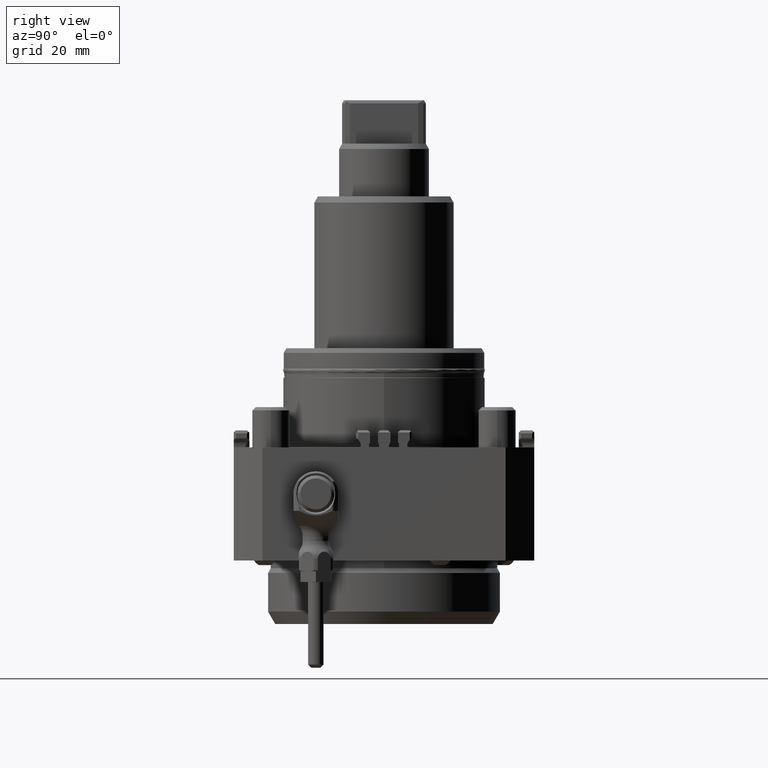
[diagram: clean part render]
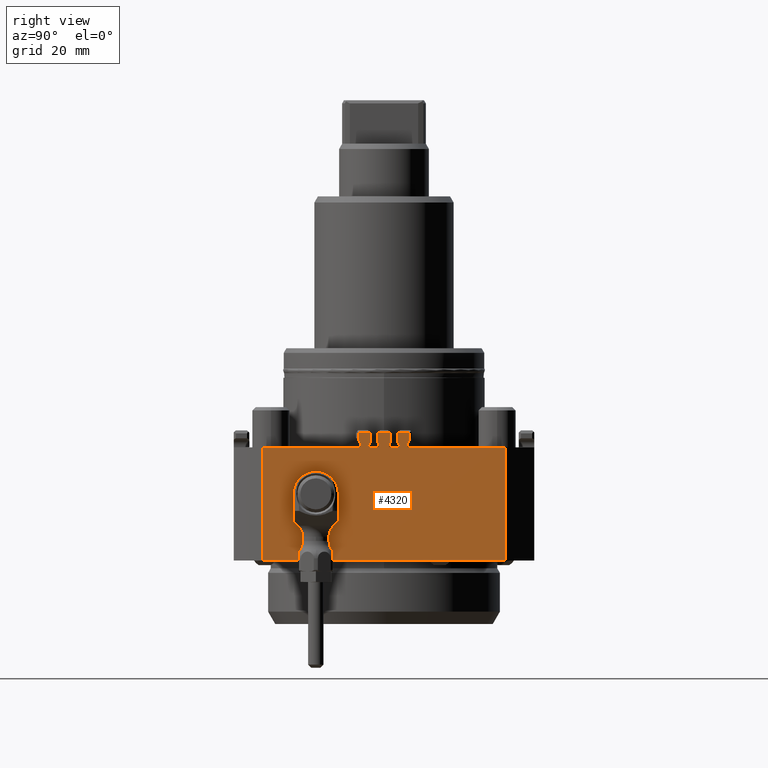
[diagram: same view with one face highlighted and labeled with its STEP entity id]
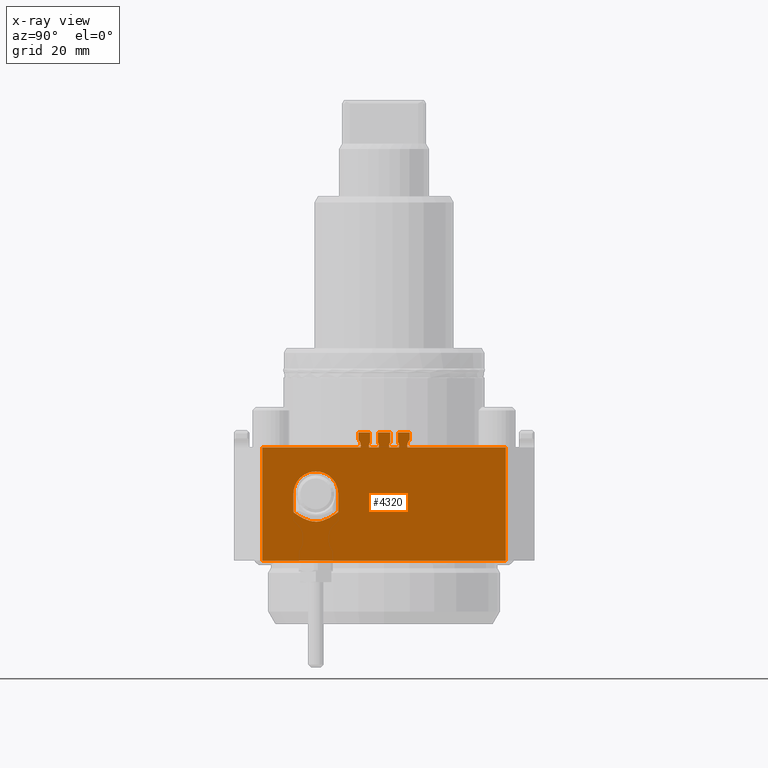
[diagram: x-ray of the same camera — body ghosted, the highlighted face saturated]
A machine part, right view. The second image highlights one B-rep face of the part: STEP entity #4320.
The next image is the same camera in x-ray: the body ghosted, the highlighted face saturated — about 0% of this face is hidden behind the body in this view.
In plain terms, the highlighted planar face has unit normal (1, -0, -0).
Its self-contained STEP definition (entity closure, byte-faithful):
#650=CARTESIAN_POINT('',(48.,4.822418519,-0.));
#651=VERTEX_POINT('',#650);
#658=CARTESIAN_POINT('',(48.,4.5,1.577032961));
#659=VERTEX_POINT('',#658);
#660=CARTESIAN_POINT('',(48.,3.25,0.5));
#661=DIRECTION('',(-1.,0.,-0.));
#662=DIRECTION('',(0.,0.,1.));
#663=AXIS2_PLACEMENT_3D('',#660,#661,#662);
#664=CIRCLE('',#663,1.65);
#665=EDGE_CURVE('',#659,#651,#664,.T.);
#690=CARTESIAN_POINT('',(48.,1.677581481,-0.));
#691=VERTEX_POINT('',#690);
#709=CARTESIAN_POINT('',(48.,2.,1.577032961));
#710=VERTEX_POINT('',#709);
#717=CARTESIAN_POINT('',(48.,3.25,0.5));
#718=DIRECTION('',(-1.,0.,-0.));
#719=DIRECTION('',(0.,0.,1.));
#720=AXIS2_PLACEMENT_3D('',#717,#718,#719);
#721=CIRCLE('',#720,1.65);
#722=EDGE_CURVE('',#691,#710,#721,.T.);
#976=CARTESIAN_POINT('',(48.,7.545836543,-0.));
#977=VERTEX_POINT('',#976);
#1012=CARTESIAN_POINT('',(48.,8.305,2.444087189));
#1013=VERTEX_POINT('',#1012);
#1021=CARTESIAN_POINT('',(48.,10.25,0.5));
#1022=DIRECTION('',(-1.,0.,-0.));
#1023=DIRECTION('',(0.,0.,1.));
#1024=AXIS2_PLACEMENT_3D('',#1021,#1022,#1023);
#1025=CIRCLE('',#1024,2.75);
#1026=EDGE_CURVE('',#977,#1013,#1025,.T.);
#1036=CARTESIAN_POINT('',(48.,-4.822418519,0.));
#1037=VERTEX_POINT('',#1036);
#1055=CARTESIAN_POINT('',(48.,-4.5,1.577032961));
#1056=VERTEX_POINT('',#1055);
#1063=CARTESIAN_POINT('',(48.,-3.25,0.5));
#1064=DIRECTION('',(-1.,0.,-0.));
#1065=DIRECTION('',(0.,0.,1.));
#1066=AXIS2_PLACEMENT_3D('',#1063,#1064,#1065);
#1067=CIRCLE('',#1066,1.65);
#1068=EDGE_CURVE('',#1037,#1056,#1067,.T.);
#2118=CARTESIAN_POINT('',(48.,-27.126524164,-9.873475836));
#2119=VERTEX_POINT('',#2118);
#2126=CARTESIAN_POINT('',(48.,-29.25,-15.));
#2127=VERTEX_POINT('',#2126);
#2128=CARTESIAN_POINT('',(48.,-22.,-15.));
#2129=DIRECTION('',(-1.,0.,0.));
#2130=DIRECTION('',(-0.,-0.707106781,0.707106781));
#2131=AXIS2_PLACEMENT_3D('',#2128,#2129,#2130);
#2132=CIRCLE('',#2131,7.25);
#2133=EDGE_CURVE('',#2127,#2119,#2132,.T.);
#2227=CARTESIAN_POINT('',(48.,-14.75,-15.));
#2228=VERTEX_POINT('',#2227);
#2236=CARTESIAN_POINT('',(48.,-14.75,-20.922177815));
#2237=VERTEX_POINT('',#2236);
#2244=CARTESIAN_POINT('',(48.,-14.75,-15.));
#2245=DIRECTION('',(0.,0.,-1.));
#2246=VECTOR('',#2245,5.922177815);
#2247=LINE('',#2244,#2246);
#2248=EDGE_CURVE('',#2228,#2237,#2247,.T.);
#2328=CARTESIAN_POINT('',(48.,-29.25,-20.922177815));
#2329=VERTEX_POINT('',#2328);
#2330=CARTESIAN_POINT('',(48.,-29.25,-20.922177815));
#2331=DIRECTION('',(0.,0.,1.));
#2332=VECTOR('',#2331,5.922177815);
#2333=LINE('',#2330,#2332);
#2334=EDGE_CURVE('',#2329,#2127,#2333,.T.);
#2508=CARTESIAN_POINT('',(48.,-22.,-24.));
#2509=VERTEX_POINT('',#2508);
#2516=CARTESIAN_POINT('',(48.,-14.75,-20.922177815));
#2517=CARTESIAN_POINT('',(48.,-19.028309614,-24.));
#2518=CARTESIAN_POINT('',(48.,-22.,-24.));
#2519=(BOUNDED_CURVE()
B_SPLINE_CURVE(2,(#2516,#2517,#2518),.UNSPECIFIED.,.F.,.F.)
B_SPLINE_CURVE_WITH_KNOTS((3,3),(0.043490481,0.85732141),.UNSPECIFIED.)
CURVE()
GEOMETRIC_REPRESENTATION_ITEM()
RATIONAL_B_SPLINE_CURVE((1.024720823,1.25,1.25))
REPRESENTATION_ITEM(''));
#2520=EDGE_CURVE('',#2237,#2509,#2519,.T.);
#3549=CARTESIAN_POINT('',(48.,2.,4.8));
#3550=VERTEX_POINT('',#3549);
#3572=CARTESIAN_POINT('',(48.,2.,1.577032961));
#3573=DIRECTION('',(0.,0.,1.));
#3574=VECTOR('',#3573,3.222967039);
#3575=LINE('',#3572,#3574);
#3576=EDGE_CURVE('',#710,#3550,#3575,.T.);
#3597=CARTESIAN_POINT('',(48.,-2.,4.8));
#3598=VERTEX_POINT('',#3597);
#3605=CARTESIAN_POINT('',(48.,-2.,4.8));
#3606=DIRECTION('',(0.,1.,0.));
#3607=VECTOR('',#3606,4.);
#3608=LINE('',#3605,#3607);
#3609=EDGE_CURVE('',#3598,#3550,#3608,.T.);
#3635=CARTESIAN_POINT('',(48.,-4.5,4.8));
#3636=VERTEX_POINT('',#3635);
#3690=CARTESIAN_POINT('',(48.,-4.5,1.577032961));
#3691=DIRECTION('',(0.,0.,1.));
#3692=VECTOR('',#3691,3.222967039);
#3693=LINE('',#3690,#3692);
#3694=EDGE_CURVE('',#1056,#3636,#3693,.T.);
#3737=CARTESIAN_POINT('',(48.,-2.,1.577032961));
#3738=VERTEX_POINT('',#3737);
#3745=CARTESIAN_POINT('',(48.,-2.,4.8));
#3746=DIRECTION('',(0.,0.,-1.));
#3747=VECTOR('',#3746,3.222967039);
#3748=LINE('',#3745,#3747);
#3749=EDGE_CURVE('',#3598,#3738,#3748,.T.);
#3759=CARTESIAN_POINT('',(48.,4.5,4.8));
#3760=VERTEX_POINT('',#3759);
#3829=CARTESIAN_POINT('',(48.,8.305,4.8));
#3830=VERTEX_POINT('',#3829);
#3831=CARTESIAN_POINT('',(48.,4.5,4.8));
#3832=DIRECTION('',(0.,1.,0.));
#3833=VECTOR('',#3832,3.805);
#3834=LINE('',#3831,#3833);
#3835=EDGE_CURVE('',#3760,#3830,#3834,.T.);
#3916=CARTESIAN_POINT('',(48.,-8.305,2.444087189));
#3917=VERTEX_POINT('',#3916);
#3925=CARTESIAN_POINT('',(48.,-8.305,4.8));
#3926=VERTEX_POINT('',#3925);
#3927=CARTESIAN_POINT('',(48.,-8.305,2.444087189));
#3928=DIRECTION('',(0.,0.,1.));
#3929=VECTOR('',#3928,2.355912811);
#3930=LINE('',#3927,#3929);
#3931=EDGE_CURVE('',#3917,#3926,#3930,.T.);
#4048=CARTESIAN_POINT('',(48.,-1.677581481,0.));
#4049=VERTEX_POINT('',#4048);
#4056=CARTESIAN_POINT('',(48.,-3.25,0.5));
#4057=DIRECTION('',(-1.,0.,-0.));
#4058=DIRECTION('',(0.,0.,1.));
#4059=AXIS2_PLACEMENT_3D('',#4056,#4057,#4058);
#4060=CIRCLE('',#4059,1.65);
#4061=EDGE_CURVE('',#3738,#4049,#4060,.T.);
#4076=CARTESIAN_POINT('',(48.,4.5,4.8));
#4077=DIRECTION('',(0.,0.,-1.));
#4078=VECTOR('',#4077,3.222967039);
#4079=LINE('',#4076,#4078);
#4080=EDGE_CURVE('',#3760,#659,#4079,.T.);
#4128=CARTESIAN_POINT('',(48.,-8.305,4.8));
#4129=DIRECTION('',(0.,1.,0.));
#4130=VECTOR('',#4129,3.805);
#4131=LINE('',#4128,#4130);
#4132=EDGE_CURVE('',#3926,#3636,#4131,.T.);
#4142=CARTESIAN_POINT('',(48.,-7.545836543,0.));
#4143=VERTEX_POINT('',#4142);
#4150=CARTESIAN_POINT('',(48.,-10.25,0.5));
#4151=DIRECTION('',(-1.,0.,-0.));
#4152=DIRECTION('',(0.,0.,1.));
#4153=AXIS2_PLACEMENT_3D('',#4150,#4151,#4152);
#4154=CIRCLE('',#4153,2.75);
#4155=EDGE_CURVE('',#3917,#4143,#4154,.T.);
#4171=CARTESIAN_POINT('',(48.,8.305,4.8));
#4172=DIRECTION('',(0.,0.,-1.));
#4173=VECTOR('',#4172,2.355912811);
#4174=LINE('',#4171,#4173);
#4175=EDGE_CURVE('',#3830,#1013,#4174,.T.);
#4229=CARTESIAN_POINT('',(48.,-0.,-3.508974596));
#4230=DIRECTION('',(1.,-0.,-0.));
#4231=DIRECTION('',(0.,1.,0.));
#4232=AXIS2_PLACEMENT_3D('',#4229,#4230,#4231);
#4233=PLANE('',#4232);
#4234=ORIENTED_EDGE('',*,*,#1026,.T.);
#4235=ORIENTED_EDGE('',*,*,#4175,.F.);
#4236=ORIENTED_EDGE('',*,*,#3835,.F.);
#4237=ORIENTED_EDGE('',*,*,#4080,.T.);
#4238=ORIENTED_EDGE('',*,*,#665,.T.);
#4239=CARTESIAN_POINT('',(48.,4.822418519,-0.));
#4240=DIRECTION('',(0.,-1.,0.));
#4241=VECTOR('',#4240,3.144837039);
#4242=LINE('',#4239,#4241);
#4243=EDGE_CURVE('',#651,#691,#4242,.T.);
#4244=ORIENTED_EDGE('',*,*,#4243,.T.);
#4245=ORIENTED_EDGE('',*,*,#722,.T.);
#4246=ORIENTED_EDGE('',*,*,#3576,.T.);
#4247=ORIENTED_EDGE('',*,*,#3609,.F.);
#4248=ORIENTED_EDGE('',*,*,#3749,.T.);
#4249=ORIENTED_EDGE('',*,*,#4061,.T.);
#4250=CARTESIAN_POINT('',(48.,-1.677581481,0.));
#4251=DIRECTION('',(0.,-1.,0.));
#4252=VECTOR('',#4251,3.144837039);
#4253=LINE('',#4250,#4252);
#4254=EDGE_CURVE('',#4049,#1037,#4253,.T.);
#4255=ORIENTED_EDGE('',*,*,#4254,.T.);
#4256=ORIENTED_EDGE('',*,*,#1068,.T.);
#4257=ORIENTED_EDGE('',*,*,#3694,.T.);
#4258=ORIENTED_EDGE('',*,*,#4132,.F.);
#4259=ORIENTED_EDGE('',*,*,#3931,.F.);
#4260=ORIENTED_EDGE('',*,*,#4155,.T.);
#4261=CARTESIAN_POINT('',(48.,-39.242833741,0.));
#4262=VERTEX_POINT('',#4261);
#4263=CARTESIAN_POINT('',(48.,-7.545836543,0.));
#4264=DIRECTION('',(0.,-1.,0.));
#4265=VECTOR('',#4264,31.696997197);
#4266=LINE('',#4263,#4265);
#4267=EDGE_CURVE('',#4143,#4262,#4266,.T.);
#4268=ORIENTED_EDGE('',*,*,#4267,.T.);
#4269=CARTESIAN_POINT('',(48.,-39.242833741,-36.5));
#4270=VERTEX_POINT('',#4269);
#4271=CARTESIAN_POINT('',(48.,-39.242833741,0.));
#4272=DIRECTION('',(0.,0.,-1.));
#4273=VECTOR('',#4272,36.5);
#4274=LINE('',#4271,#4273);
#4275=EDGE_CURVE('',#4262,#4270,#4274,.T.);
#4276=ORIENTED_EDGE('',*,*,#4275,.T.);
#4277=CARTESIAN_POINT('',(48.,39.242833741,-36.5));
#4278=VERTEX_POINT('',#4277);
#4279=CARTESIAN_POINT('',(48.,-39.242833741,-36.5));
#4280=DIRECTION('',(0.,1.,0.));
#4281=VECTOR('',#4280,78.485667481);
#4282=LINE('',#4279,#4281);
#4283=EDGE_CURVE('',#4270,#4278,#4282,.T.);
#4284=ORIENTED_EDGE('',*,*,#4283,.T.);
#4285=CARTESIAN_POINT('',(48.,39.242833741,-0.));
#4286=VERTEX_POINT('',#4285);
#4287=CARTESIAN_POINT('',(48.,39.242833741,-36.5));
#4288=DIRECTION('',(0.,0.,1.));
#4289=VECTOR('',#4288,36.5);
#4290=LINE('',#4287,#4289);
#4291=EDGE_CURVE('',#4278,#4286,#4290,.T.);
#4292=ORIENTED_EDGE('',*,*,#4291,.T.);
#4293=CARTESIAN_POINT('',(48.,39.242833741,-0.));
#4294=DIRECTION('',(0.,-1.,0.));
#4295=VECTOR('',#4294,31.696997197);
#4296=LINE('',#4293,#4295);
#4297=EDGE_CURVE('',#4286,#977,#4296,.T.);
#4298=ORIENTED_EDGE('',*,*,#4297,.T.);
#4299=EDGE_LOOP('',(#4234,#4235,#4236,#4237,#4238,#4244,#4245,#4246,#4247,#4248,#4249,#4255,#4256,#4257,#4258,#4259,#4260,#4268,#4276,#4284,#4292,#4298));
#4300=FACE_BOUND('',#4299,.T.);
#4301=ORIENTED_EDGE('',*,*,#2133,.T.);
#4302=CARTESIAN_POINT('',(48.,-22.,-15.));
#4303=DIRECTION('',(-1.,0.,0.));
#4304=DIRECTION('',(-0.,-0.707106781,0.707106781));
#4305=AXIS2_PLACEMENT_3D('',#4302,#4303,#4304);
#4306=CIRCLE('',#4305,7.25);
#4307=EDGE_CURVE('',#2119,#2228,#4306,.T.);
#4308=ORIENTED_EDGE('',*,*,#4307,.T.);
#4309=ORIENTED_EDGE('',*,*,#2248,.T.);
#4310=ORIENTED_EDGE('',*,*,#2520,.T.);
#4311=CARTESIAN_POINT('',(48.,-22.,-24.));
#4312=CARTESIAN_POINT('',(48.,-24.971690386,-24.));
#4313=CARTESIAN_POINT('',(48.,-29.25,-20.922177815));
#4314=(BOUNDED_CURVE()
B_SPLINE_CURVE(2,(#4311,#4312,#4313),.UNSPECIFIED.,.F.,.F.)
B_SPLINE_CURVE_WITH_KNOTS((3,3),(0.85732141,1.671152339),.UNSPECIFIED.)
CURVE()
GEOMETRIC_REPRESENTATION_ITEM()
RATIONAL_B_SPLINE_CURVE((1.25,1.25,1.024720823))
REPRESENTATION_ITEM(''));
#4315=EDGE_CURVE('',#2509,#2329,#4314,.T.);
#4316=ORIENTED_EDGE('',*,*,#4315,.T.);
#4317=ORIENTED_EDGE('',*,*,#2334,.T.);
#4318=EDGE_LOOP('',(#4301,#4308,#4309,#4310,#4316,#4317));
#4319=FACE_BOUND('',#4318,.T.);
#4320=ADVANCED_FACE('',(#4300,#4319),#4233,.T.);